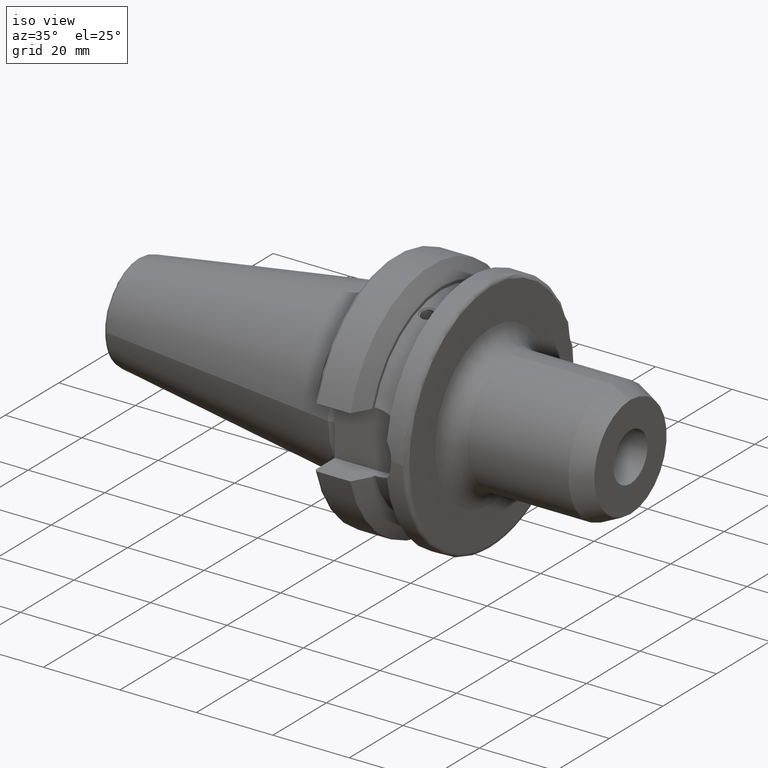
[diagram: clean part render]
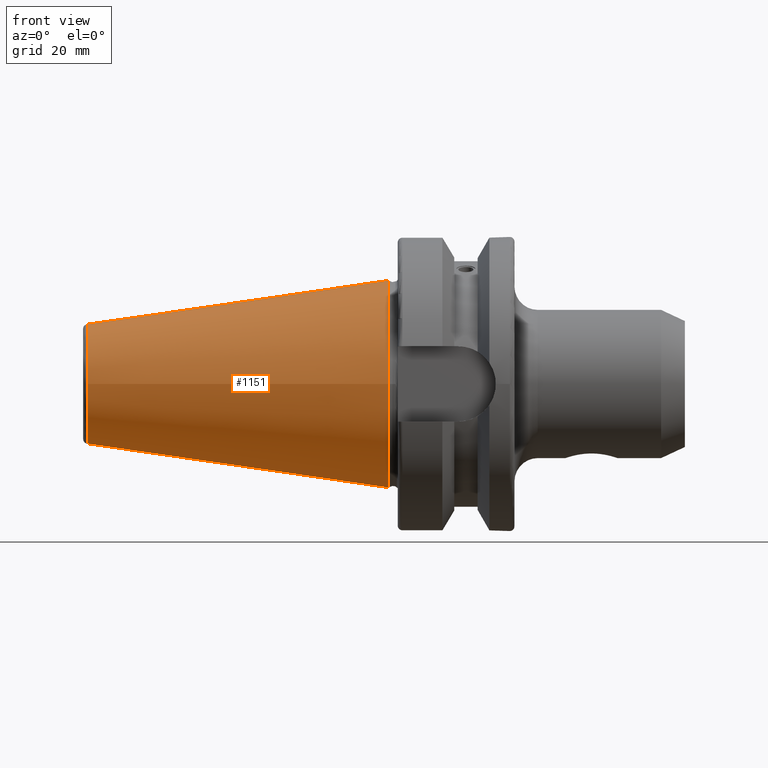
[diagram: tour spotlight — one face highlighted and labeled with its STEP entity id]
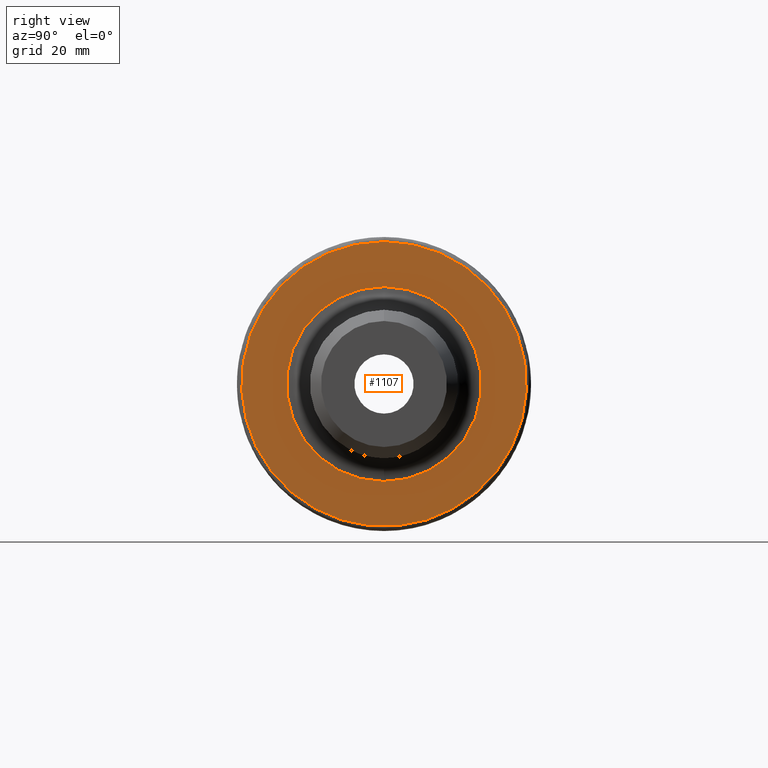
[diagram: tour spotlight — one face highlighted and labeled with its STEP entity id]
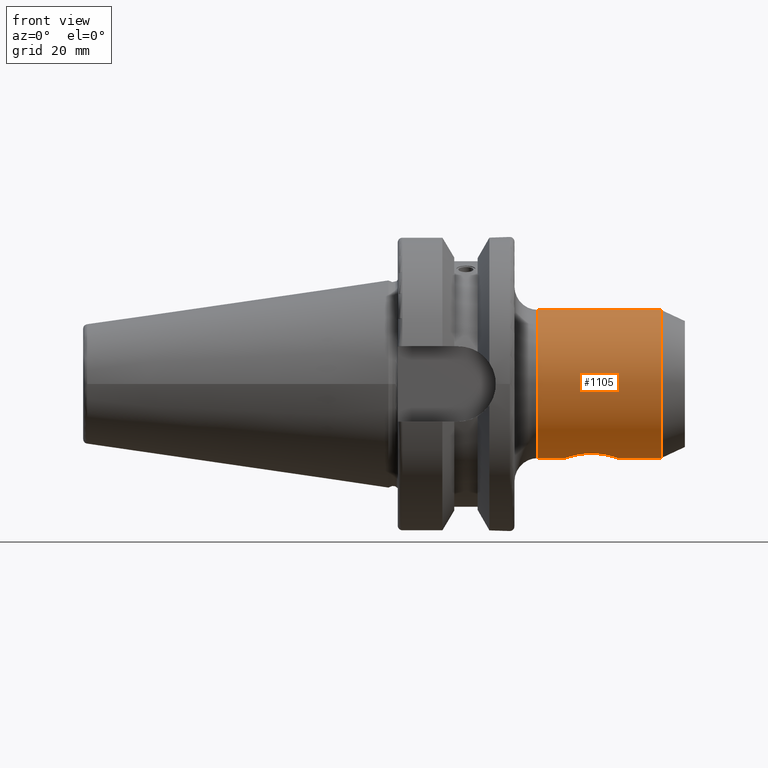
[diagram: tour spotlight — one face highlighted and labeled with its STEP entity id]
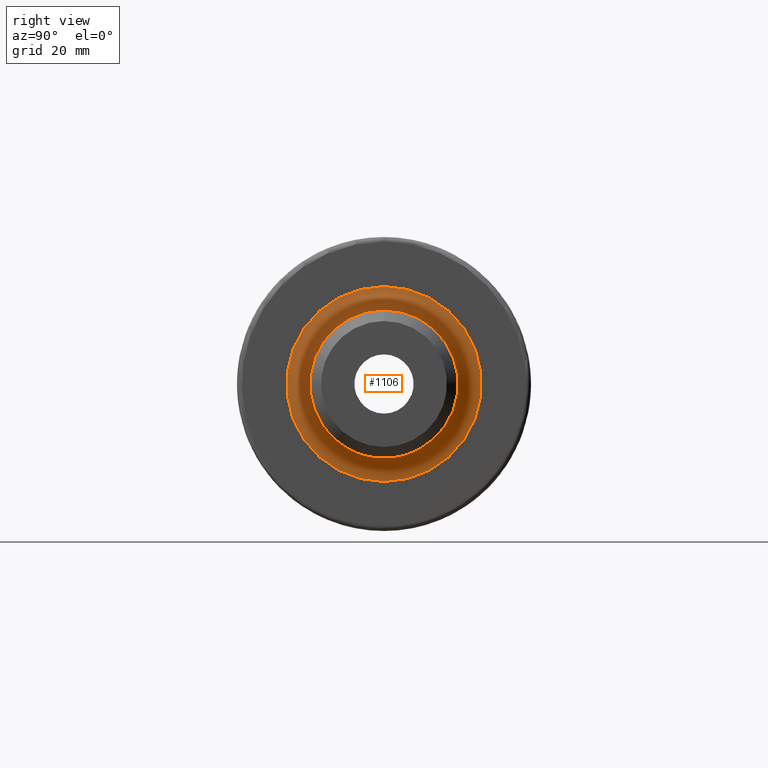
[diagram: tour spotlight — one face highlighted and labeled with its STEP entity id]
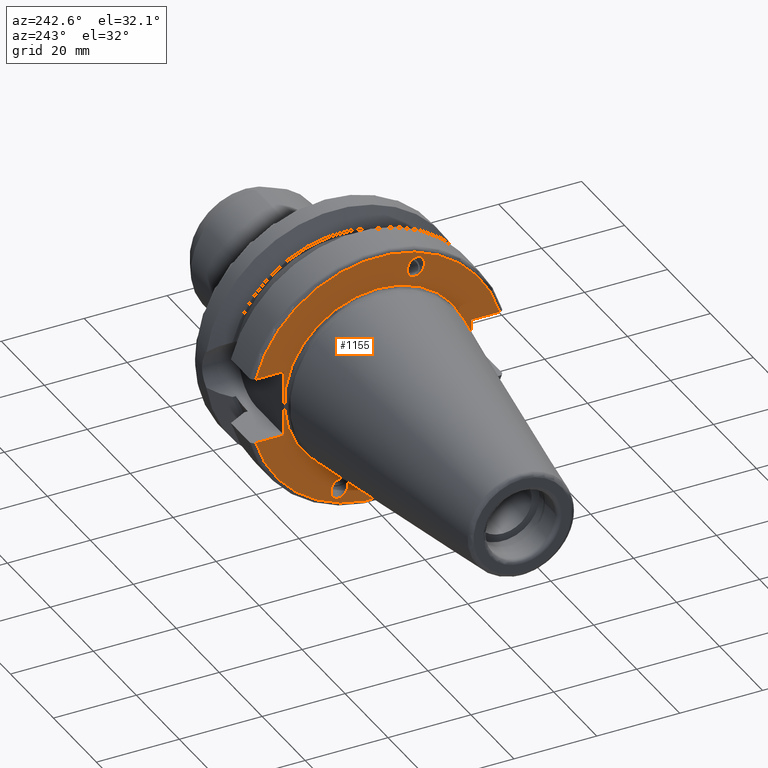
[diagram: tour spotlight — one face highlighted and labeled with its STEP entity id]
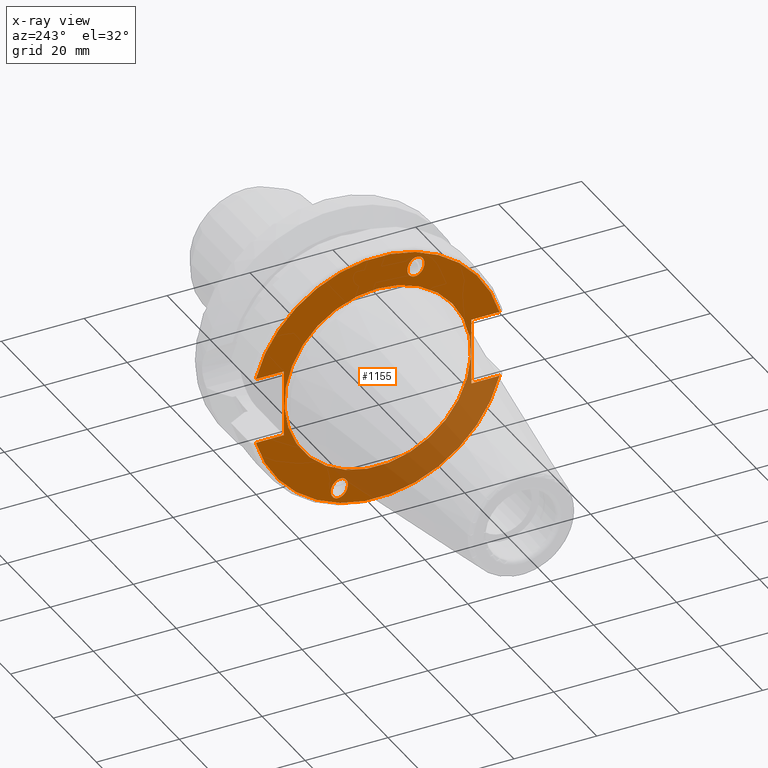
[diagram: x-ray of the same camera — body ghosted, this tour face saturated]
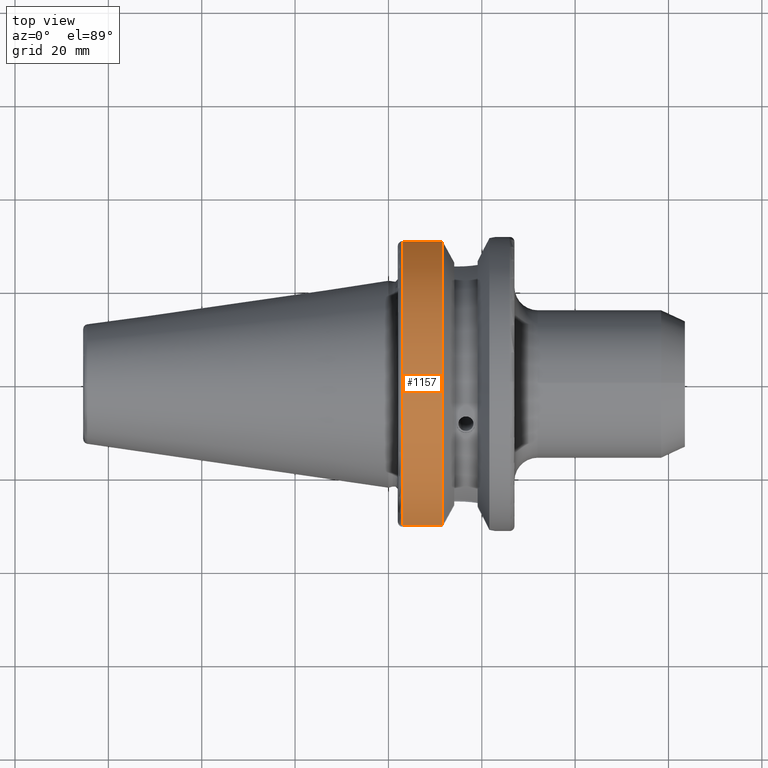
[diagram: tour spotlight — one face highlighted and labeled with its STEP entity id]
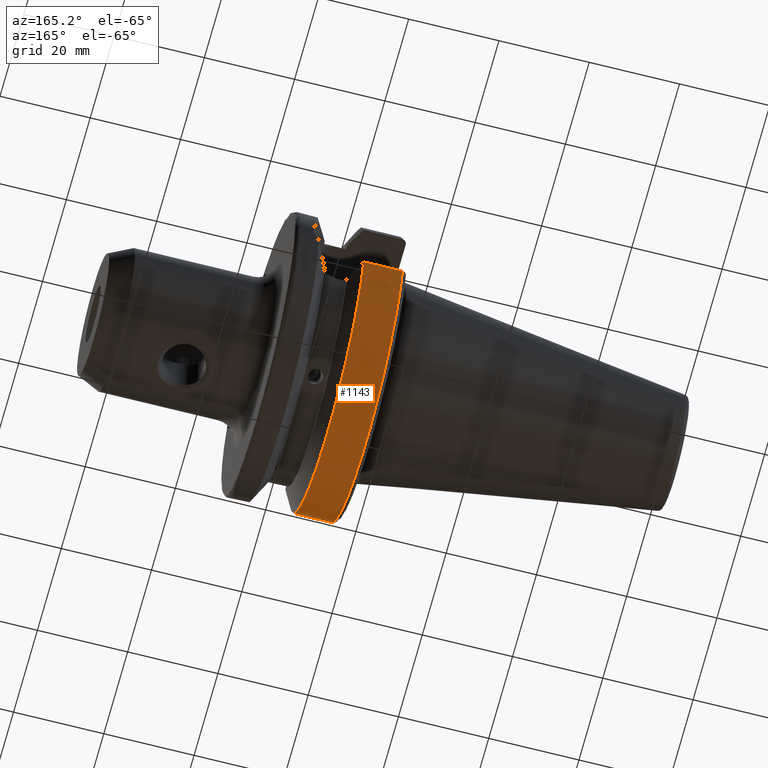
[diagram: tour spotlight — one face highlighted and labeled with its STEP entity id]
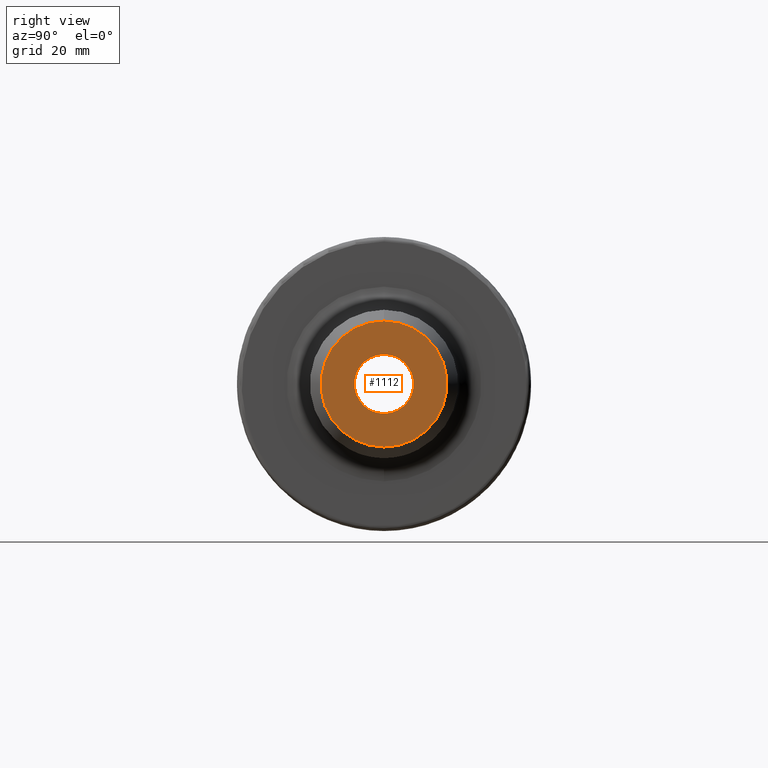
[diagram: tour spotlight — one face highlighted and labeled with its STEP entity id]
A machine part: a face-by-face anatomy tour. The part has 66 B-rep faces; the first image is the clean iso view, then the 8 largest visible faces are spotlighted one at a time (largest first), each with its STEP entity span.

Face 1 — front view, entity #1151. In plain terms, the highlighted conical surface has half-angle 8.297 deg.
Definition (entity closure, byte-faithful):
#45=CONICAL_SURFACE('',#1299,17.5186442890469,0.144812498238939);
#130=CIRCLE('',#1295,12.8122885780937);
#131=CIRCLE('',#1296,12.8122885780937);
#134=CIRCLE('',#1300,22.225);
#229=FACE_OUTER_BOUND('',#306,.T.);
#306=EDGE_LOOP('',(#1017,#1018,#1019,#1020,#1021));
#411=LINE('',#2421,#471);
#471=VECTOR('',#1611,17.5186442890469);
#575=VERTEX_POINT('',#2411);
#576=VERTEX_POINT('',#2412);
#578=VERTEX_POINT('',#2419);
#730=EDGE_CURVE('',#575,#576,#130,.T.);
#731=EDGE_CURVE('',#576,#575,#131,.T.);
#734=EDGE_CURVE('',#578,#578,#134,.T.);
#735=EDGE_CURVE('',#578,#575,#411,.T.);
#1017=ORIENTED_EDGE('',*,*,#734,.F.);
#1018=ORIENTED_EDGE('',*,*,#735,.T.);
#1019=ORIENTED_EDGE('',*,*,#730,.T.);
#1020=ORIENTED_EDGE('',*,*,#731,.T.);
#1021=ORIENTED_EDGE('',*,*,#735,.F.);
#1151=ADVANCED_FACE('',(#229),#45,.T.);
#1295=AXIS2_PLACEMENT_3D('',#2413,#1599,#1600);
#1296=AXIS2_PLACEMENT_3D('',#2414,#1601,#1602);
#1299=AXIS2_PLACEMENT_3D('',#2418,#1607,#1608);
#1300=AXIS2_PLACEMENT_3D('',#2420,#1609,#1610);
#1599=DIRECTION('center_axis',(1.,0.,0.));
#1600=DIRECTION('ref_axis',(0.,0.,-1.));
#1601=DIRECTION('center_axis',(1.,0.,0.));
#1602=DIRECTION('ref_axis',(0.,0.,-1.));
#1607=DIRECTION('center_axis',(1.,0.,0.));
#1608=DIRECTION('ref_axis',(0.,1.,0.));
#1609=DIRECTION('center_axis',(1.,0.,0.));
#1610=DIRECTION('ref_axis',(0.,0.,-1.));
#1611=DIRECTION('',(-0.989532981063282,0.144306893071729,1.76724974695192E-17));
#2411=CARTESIAN_POINT('',(-64.5443068930717,-12.8122885780937,-1.56905281969147E-15));
#2412=CARTESIAN_POINT('',(-64.5443068930717,-1.56905281969147E-15,12.8122885780937));
#2413=CARTESIAN_POINT('Origin',(-64.5443068930717,0.,0.));
#2414=CARTESIAN_POINT('Origin',(-64.5443068930717,0.,0.));
#2418=CARTESIAN_POINT('Origin',(-32.2721534465359,0.,0.));
#2419=CARTESIAN_POINT('',(4.44089209850063E-15,-22.225,-2.72177751110499E-15));
#2420=CARTESIAN_POINT('Origin',(0.,0.,0.));
#2421=CARTESIAN_POINT('',(-32.2721534465359,-17.5186442890469,-2.14541516539823E-15));

Face 2 — right view, entity #1107. In plain terms, the highlighted planar face has unit normal (1, 0, 0).
Definition (entity closure, byte-faithful):
#49=PLANE('',#1200);
#76=FACE_BOUND('',#253,.T.);
#96=CIRCLE('',#1199,20.875);
#97=CIRCLE('',#1201,30.5);
#185=FACE_OUTER_BOUND('',#252,.T.);
#252=EDGE_LOOP('',(#780));
#253=EDGE_LOOP('',(#781));
#484=VERTEX_POINT('',#1906);
#485=VERTEX_POINT('',#1910);
#600=EDGE_CURVE('',#484,#484,#96,.T.);
#601=EDGE_CURVE('',#485,#485,#97,.T.);
#780=ORIENTED_EDGE('',*,*,#601,.T.);
#781=ORIENTED_EDGE('',*,*,#600,.F.);
#1107=ADVANCED_FACE('',(#185,#76),#49,.T.);
#1199=AXIS2_PLACEMENT_3D('',#1908,#1356,#1357);
#1200=AXIS2_PLACEMENT_3D('',#1909,#1358,#1359);
#1201=AXIS2_PLACEMENT_3D('',#1911,#1360,#1361);
#1356=DIRECTION('center_axis',(1.,0.,0.));
#1357=DIRECTION('ref_axis',(0.,-1.22464679914735E-16,1.));
#1358=DIRECTION('center_axis',(1.,0.,0.));
#1359=DIRECTION('ref_axis',(0.,0.,-1.));
#1360=DIRECTION('center_axis',(1.,0.,0.));
#1361=DIRECTION('ref_axis',(0.,0.,-1.));
#1906=CARTESIAN_POINT('',(27.,5.1129003864402E-15,-20.875));
#1908=CARTESIAN_POINT('Origin',(27.,0.,0.));
#1909=CARTESIAN_POINT('Origin',(27.,0.,0.));
#1910=CARTESIAN_POINT('',(27.,-3.73517273739943E-15,30.5));
#1911=CARTESIAN_POINT('Origin',(27.,0.,0.));

Face 3 — front view, entity #1105. In plain terms, the highlighted cylindrical surface (bore or boss wall) has radius 15.875 mm, axis along (1, 0, 0).
Definition (entity closure, byte-faithful):
#75=FACE_BOUND('',#250,.T.);
#92=CIRCLE('',#1194,15.875);
#93=CIRCLE('',#1195,15.875);
#94=CIRCLE('',#1196,15.875);
#155=CYLINDRICAL_SURFACE('',#1193,15.875);
#183=FACE_OUTER_BOUND('',#249,.T.);
#249=EDGE_LOOP('',(#769,#770,#771,#772,#773));
#250=EDGE_LOOP('',(#774));
#331=B_SPLINE_CURVE_WITH_KNOTS('',3,(#1823,#1824,#1825,#1826,#1827,#1828,
#1829,#1830,#1831,#1832,#1833,#1834,#1835,#1836,#1837,#1838,#1839,#1840,
#1841,#1842,#1843,#1844,#1845,#1846,#1847,#1848),.UNSPECIFIED.,.T.,.F.,
(4,1,1,1,1,1,1,1,1,1,1,1,1,1,1,1,1,1,1,1,1,1,1,4),(-5.16635070372784,-4.95547924643282,
-4.85004351778531,-4.74460778913781,-4.6391720604903,-4.53373633184279,
-4.32286487454778,-4.21742914590027,-4.11199341725277,-4.00655768860526,
-3.90112195995775,-3.76054098842774,-3.61996001689774,-3.47937904536773,
-3.40908855960272,-3.33879807383772,-3.19821710230771,-3.0576361307777,
-2.84676467348269,-2.74132894483518,-2.63589321618767,-2.53045748754016,
-2.42502175889266,-2.21415030159764),.UNSPECIFIED.);
#359=LINE('',#1901,#419);
#419=VECTOR('',#1347,15.875);
#477=VERTEX_POINT('',#1794);
#481=VERTEX_POINT('',#1898);
#482=VERTEX_POINT('',#1900);
#483=VERTEX_POINT('',#1902);
#591=EDGE_CURVE('',#477,#477,#331,.T.);
#595=EDGE_CURVE('',#481,#481,#92,.T.);
#596=EDGE_CURVE('',#481,#482,#359,.T.);
#597=EDGE_CURVE('',#483,#482,#93,.T.);
#598=EDGE_CURVE('',#482,#483,#94,.T.);
#769=ORIENTED_EDGE('',*,*,#595,.F.);
#770=ORIENTED_EDGE('',*,*,#596,.T.);
#771=ORIENTED_EDGE('',*,*,#597,.F.);
#772=ORIENTED_EDGE('',*,*,#598,.F.);
#773=ORIENTED_EDGE('',*,*,#596,.F.);
#774=ORIENTED_EDGE('',*,*,#591,.F.);
#1105=ADVANCED_FACE('',(#183,#75),#155,.T.);
#1193=AXIS2_PLACEMENT_3D('',#1897,#1343,#1344);
#1194=AXIS2_PLACEMENT_3D('',#1899,#1345,#1346);
#1195=AXIS2_PLACEMENT_3D('',#1903,#1348,#1349);
#1196=AXIS2_PLACEMENT_3D('',#1904,#1350,#1351);
#1343=DIRECTION('center_axis',(1.,0.,0.));
#1344=DIRECTION('ref_axis',(0.,0.,-1.));
#1345=DIRECTION('center_axis',(1.,0.,0.));
#1346=DIRECTION('ref_axis',(0.,0.,-1.));
#1347=DIRECTION('',(-1.,0.,0.));
#1348=DIRECTION('center_axis',(-1.,0.,0.));
#1349=DIRECTION('ref_axis',(0.,-1.22464679914735E-16,1.));
#1350=DIRECTION('center_axis',(-1.,0.,0.));
#1351=DIRECTION('ref_axis',(0.,-1.22464679914735E-16,1.));
#1794=CARTESIAN_POINT('',(37.9359,8.32667268468867E-16,-15.875));
#1823=CARTESIAN_POINT('Ctrl Pts',(37.9359,8.32667268468867E-16,-15.875));
#1824=CARTESIAN_POINT('Ctrl Pts',(37.9359,0.804060960599264,-15.875));
#1825=CARTESIAN_POINT('Ctrl Pts',(38.21885928879,2.09132047229415,-15.770890115808));
#1826=CARTESIAN_POINT('Ctrl Pts',(39.1357994454657,3.50938295262178,-15.491496025309));
#1827=CARTESIAN_POINT('Ctrl Pts',(39.9733241633632,4.33813073783217,-15.2773201274132));
#1828=CARTESIAN_POINT('Ctrl Pts',(41.0412765394177,5.0191488703765,-15.06465149187));
#1829=CARTESIAN_POINT('Ctrl Pts',(42.6751741856057,5.57296984562855,-14.8661139944416));
#1830=CARTESIAN_POINT('Ctrl Pts',(44.3208456662402,5.57297084650178,-14.8659642266892));
#1831=CARTESIAN_POINT('Ctrl Pts',(45.9586083338581,5.01922685604243,-15.064727910361));
#1832=CARTESIAN_POINT('Ctrl Pts',(47.0260274881502,4.33931125358054,-15.2770442972329));
#1833=CARTESIAN_POINT('Ctrl Pts',(47.8648384719495,3.50842653957464,-15.4919354515253));
#1834=CARTESIAN_POINT('Ctrl Pts',(48.6291868675363,2.3294525940605,-15.7242799743365));
#1835=CARTESIAN_POINT('Ctrl Pts',(49.0834509457543,0.810219586411434,-15.8821685086812));
#1836=CARTESIAN_POINT('Ctrl Pts',(49.0855214263102,-0.809488388950272,-15.8825436281913));
#1837=CARTESIAN_POINT('Ctrl Pts',(48.6702661121608,-2.19030602512504,-15.738811058703));
#1838=CARTESIAN_POINT('Ctrl Pts',(48.0991256988382,-3.15823069072185,-15.5624442240192));
#1839=CARTESIAN_POINT('Ctrl Pts',(47.4209872970529,-3.99391174533736,-15.3741944964824));
#1840=CARTESIAN_POINT('Ctrl Pts',(46.3687385665599,-4.84177544004266,-15.127111655742));
#1841=CARTESIAN_POINT('Ctrl Pts',(44.4599953989191,-5.58172331901252,-14.8637794209435));
#1842=CARTESIAN_POINT('Ctrl Pts',(42.6750971656157,-5.5704892121659,-14.866732995847));
#1843=CARTESIAN_POINT('Ctrl Pts',(41.0415419489669,-5.01962431176317,-15.0645357117197));
#1844=CARTESIAN_POINT('Ctrl Pts',(39.9733674477062,-4.33747944375034,-15.2774833046071));
#1845=CARTESIAN_POINT('Ctrl Pts',(39.135885241253,-3.50936750779,-15.4915008495138));
#1846=CARTESIAN_POINT('Ctrl Pts',(38.2188896244505,-2.09105896837217,-15.7709557795993));
#1847=CARTESIAN_POINT('Ctrl Pts',(37.9359,-0.804060960599224,-15.875));
#1848=CARTESIAN_POINT('Ctrl Pts',(37.9359,6.93889390390723E-16,-15.875));
#1897=CARTESIAN_POINT('Origin',(42.7033980318949,0.,0.));
#1898=CARTESIAN_POINT('',(58.4067960637898,-1.94412679364642E-15,15.875));
#1899=CARTESIAN_POINT('Origin',(58.4067960637898,0.,0.));
#1900=CARTESIAN_POINT('',(32.,-1.94412679364642E-15,15.875));
#1901=CARTESIAN_POINT('',(42.7033980318949,-1.94412679364642E-15,15.875));
#1902=CARTESIAN_POINT('',(32.,0.,-15.875));
#1903=CARTESIAN_POINT('Origin',(32.,0.,0.));
#1904=CARTESIAN_POINT('Origin',(32.,0.,0.));

Face 4 — right view, entity #1106. In plain terms, the highlighted toroidal blend (fillet) surface has major radius 20.875 mm and minor (blend) radius 5 mm.
Definition (entity closure, byte-faithful):
#68=TOROIDAL_SURFACE('',#1197,20.875,5.);
#93=CIRCLE('',#1195,15.875);
#94=CIRCLE('',#1196,15.875);
#95=CIRCLE('',#1198,5.);
#96=CIRCLE('',#1199,20.875);
#184=FACE_OUTER_BOUND('',#251,.T.);
#251=EDGE_LOOP('',(#775,#776,#777,#778,#779));
#482=VERTEX_POINT('',#1900);
#483=VERTEX_POINT('',#1902);
#484=VERTEX_POINT('',#1906);
#597=EDGE_CURVE('',#483,#482,#93,.T.);
#598=EDGE_CURVE('',#482,#483,#94,.T.);
#599=EDGE_CURVE('',#483,#484,#95,.T.);
#600=EDGE_CURVE('',#484,#484,#96,.T.);
#775=ORIENTED_EDGE('',*,*,#597,.T.);
#776=ORIENTED_EDGE('',*,*,#598,.T.);
#777=ORIENTED_EDGE('',*,*,#599,.T.);
#778=ORIENTED_EDGE('',*,*,#600,.T.);
#779=ORIENTED_EDGE('',*,*,#599,.F.);
#1106=ADVANCED_FACE('',(#184),#68,.F.);
#1195=AXIS2_PLACEMENT_3D('',#1903,#1348,#1349);
#1196=AXIS2_PLACEMENT_3D('',#1904,#1350,#1351);
#1197=AXIS2_PLACEMENT_3D('',#1905,#1352,#1353);
#1198=AXIS2_PLACEMENT_3D('',#1907,#1354,#1355);
#1199=AXIS2_PLACEMENT_3D('',#1908,#1356,#1357);
#1348=DIRECTION('center_axis',(-1.,0.,0.));
#1349=DIRECTION('ref_axis',(0.,-1.22464679914735E-16,1.));
#1350=DIRECTION('center_axis',(-1.,0.,0.));
#1351=DIRECTION('ref_axis',(0.,-1.22464679914735E-16,1.));
#1352=DIRECTION('center_axis',(-1.,0.,0.));
#1353=DIRECTION('ref_axis',(0.,0.,1.));
#1354=DIRECTION('center_axis',(0.,-1.,1.22464679914735E-16));
#1355=DIRECTION('ref_axis',(0.,-1.22464679914735E-16,-1.));
#1356=DIRECTION('center_axis',(1.,0.,0.));
#1357=DIRECTION('ref_axis',(0.,-1.22464679914735E-16,1.));
#1900=CARTESIAN_POINT('',(32.,-1.94412679364642E-15,15.875));
#1902=CARTESIAN_POINT('',(32.,0.,-15.875));
#1903=CARTESIAN_POINT('Origin',(32.,0.,0.));
#1904=CARTESIAN_POINT('Origin',(32.,0.,0.));
#1905=CARTESIAN_POINT('Origin',(32.,0.,0.));
#1906=CARTESIAN_POINT('',(27.,5.1129003864402E-15,-20.875));
#1907=CARTESIAN_POINT('Origin',(32.,-2.5564501932201E-15,-20.875));
#1908=CARTESIAN_POINT('Origin',(27.,0.,0.));

Face 5 — auxiliary view, entity #1155. An x-ray twin of the same camera follows (body ghosted, this face saturated) — the face is partly hidden behind the body. In plain terms, the highlighted planar face has unit normal (-1, 0, 0).
Definition (entity closure, byte-faithful):
#27=ELLIPSE('',#1235,2.44154917752291,2.);
#36=ELLIPSE('',#1258,2.44154917752291,2.);
#63=PLANE('',#1309);
#86=FACE_BOUND('',#311,.T.);
#87=FACE_BOUND('',#312,.T.);
#88=FACE_BOUND('',#313,.T.);
#127=CIRCLE('',#1286,30.5);
#139=CIRCLE('',#1308,22.5);
#140=CIRCLE('',#1310,30.5);
#233=FACE_OUTER_BOUND('',#310,.T.);
#310=EDGE_LOOP('',(#1036,#1037,#1038,#1039,#1040,#1041,#1042,#1043));
#311=EDGE_LOOP('',(#1044));
#312=EDGE_LOOP('',(#1045));
#313=EDGE_LOOP('',(#1046));
#387=LINE('',#2255,#447);
#391=LINE('',#2263,#451);
#394=LINE('',#2283,#454);
#405=LINE('',#2383,#465);
#408=LINE('',#2404,#468);
#410=LINE('',#2407,#470);
#447=VECTOR('',#1517,10.);
#451=VECTOR('',#1523,10.);
#454=VECTOR('',#1528,10.);
#465=VECTOR('',#1583,10.);
#468=VECTOR('',#1588,10.);
#470=VECTOR('',#1592,10.);
#510=VERTEX_POINT('',#2087);
#525=VERTEX_POINT('',#2168);
#543=VERTEX_POINT('',#2243);
#544=VERTEX_POINT('',#2254);
#546=VERTEX_POINT('',#2260);
#547=VERTEX_POINT('',#2262);
#562=VERTEX_POINT('',#2343);
#569=VERTEX_POINT('',#2380);
#570=VERTEX_POINT('',#2382);
#574=VERTEX_POINT('',#2403);
#582=VERTEX_POINT('',#2433);
#638=EDGE_CURVE('',#510,#510,#27,.T.);
#661=EDGE_CURVE('',#525,#525,#36,.T.);
#682=EDGE_CURVE('',#544,#543,#387,.T.);
#686=EDGE_CURVE('',#547,#546,#391,.T.);
#691=EDGE_CURVE('',#546,#544,#394,.T.);
#711=EDGE_CURVE('',#547,#562,#127,.T.);
#721=EDGE_CURVE('',#570,#569,#405,.T.);
#726=EDGE_CURVE('',#574,#562,#408,.T.);
#728=EDGE_CURVE('',#569,#574,#410,.T.);
#742=EDGE_CURVE('',#582,#582,#139,.T.);
#743=EDGE_CURVE('',#570,#543,#140,.T.);
#1036=ORIENTED_EDGE('',*,*,#682,.T.);
#1037=ORIENTED_EDGE('',*,*,#743,.F.);
#1038=ORIENTED_EDGE('',*,*,#721,.T.);
#1039=ORIENTED_EDGE('',*,*,#728,.T.);
#1040=ORIENTED_EDGE('',*,*,#726,.T.);
#1041=ORIENTED_EDGE('',*,*,#711,.F.);
#1042=ORIENTED_EDGE('',*,*,#686,.T.);
#1043=ORIENTED_EDGE('',*,*,#691,.T.);
#1044=ORIENTED_EDGE('',*,*,#638,.T.);
#1045=ORIENTED_EDGE('',*,*,#661,.T.);
#1046=ORIENTED_EDGE('',*,*,#742,.T.);
#1155=ADVANCED_FACE('',(#233,#86,#87,#88),#63,.T.);
#1235=AXIS2_PLACEMENT_3D('',#2089,#1439,#1440);
#1258=AXIS2_PLACEMENT_3D('',#2170,#1492,#1493);
#1286=AXIS2_PLACEMENT_3D('',#2344,#1570,#1571);
#1308=AXIS2_PLACEMENT_3D('',#2435,#1628,#1629);
#1309=AXIS2_PLACEMENT_3D('',#2436,#1630,#1631);
#1310=AXIS2_PLACEMENT_3D('',#2437,#1632,#1633);
#1439=DIRECTION('center_axis',(1.,0.,0.));
#1440=DIRECTION('ref_axis',(5.68400912649004E-17,-0.342020143325671,0.939692620785908));
#1492=DIRECTION('center_axis',(1.,0.,0.));
#1493=DIRECTION('ref_axis',(5.68400912649004E-17,0.342020143325671,-0.939692620785908));
#1517=DIRECTION('',(0.,-1.,0.));
#1523=DIRECTION('',(0.,1.,0.));
#1528=DIRECTION('',(0.,0.,1.));
#1570=DIRECTION('center_axis',(1.,0.,0.));
#1571=DIRECTION('ref_axis',(0.,0.,-1.));
#1583=DIRECTION('',(0.,-1.,0.));
#1588=DIRECTION('',(0.,1.,0.));
#1592=DIRECTION('',(0.,0.,-1.));
#1628=DIRECTION('center_axis',(1.,0.,0.));
#1629=DIRECTION('ref_axis',(0.,0.,-1.));
#1630=DIRECTION('center_axis',(-1.,0.,0.));
#1631=DIRECTION('ref_axis',(0.,0.,1.));
#1632=DIRECTION('center_axis',(1.,0.,0.));
#1633=DIRECTION('ref_axis',(0.,0.,-1.));
#2087=CARTESIAN_POINT('',(1.99999999999999,-8.39948487015999,23.0773950158154));
#2089=CARTESIAN_POINT('Origin',(1.99999999999999,-9.23454386979305,25.3717007612195));
#2168=CARTESIAN_POINT('',(1.99999999999999,8.39948487015999,-23.0773950158154));
#2170=CARTESIAN_POINT('Origin',(1.99999999999999,9.23454386979305,-25.3717007612195));
#2243=CARTESIAN_POINT('',(1.99999999999999,-29.4184890842477,8.05));
#2254=CARTESIAN_POINT('',(1.99999999999999,-22.6,8.05));
#2255=CARTESIAN_POINT('',(1.99999999999999,3.95,8.05));
#2260=CARTESIAN_POINT('',(1.99999999999999,-22.6,-8.05));
#2262=CARTESIAN_POINT('',(1.99999999999999,-29.4184890842477,-8.05));
#2263=CARTESIAN_POINT('',(1.99999999999999,3.95,-8.05));
#2283=CARTESIAN_POINT('',(1.99999999999999,-22.6,0.));
#2343=CARTESIAN_POINT('',(1.99999999999999,29.4184890842477,-8.05));
#2344=CARTESIAN_POINT('Origin',(1.99999999999999,0.,0.));
#2380=CARTESIAN_POINT('',(1.99999999999999,22.6,8.05));
#2382=CARTESIAN_POINT('',(1.99999999999999,29.4184890842477,8.05));
#2383=CARTESIAN_POINT('',(1.99999999999999,26.55,8.05));
#2403=CARTESIAN_POINT('',(1.99999999999999,22.6,-8.05));
#2404=CARTESIAN_POINT('',(1.99999999999999,26.55,-8.05));
#2407=CARTESIAN_POINT('',(1.99999999999999,22.6,0.));
#2433=CARTESIAN_POINT('',(2.,-2.75545529808154E-15,22.5));
#2435=CARTESIAN_POINT('Origin',(2.,0.,0.));
#2436=CARTESIAN_POINT('Origin',(1.99999999999999,30.5,0.));
#2437=CARTESIAN_POINT('Origin',(1.99999999999999,0.,0.));

Face 6 — top view, entity #1157. In plain terms, the highlighted cylindrical surface (partial cylindrical patch) has radius 31.5 mm, axis along (1, 0, 0).
Definition (entity closure, byte-faithful):
#141=CIRCLE('',#1312,31.5);
#142=CIRCLE('',#1314,31.5000000000001);
#177=CYLINDRICAL_SURFACE('',#1313,31.5);
#235=FACE_OUTER_BOUND('',#315,.T.);
#315=EDGE_LOOP('',(#1051,#1052,#1053,#1054));
#386=LINE('',#2242,#446);
#406=LINE('',#2396,#466);
#446=VECTOR('',#1516,10.);
#466=VECTOR('',#1584,10.);
#541=VERTEX_POINT('',#2237);
#542=VERTEX_POINT('',#2241);
#571=VERTEX_POINT('',#2384);
#572=VERTEX_POINT('',#2395);
#680=EDGE_CURVE('',#542,#541,#386,.T.);
#723=EDGE_CURVE('',#572,#571,#406,.T.);
#744=EDGE_CURVE('',#571,#542,#141,.T.);
#745=EDGE_CURVE('',#572,#541,#142,.T.);
#1051=ORIENTED_EDGE('',*,*,#680,.T.);
#1052=ORIENTED_EDGE('',*,*,#745,.F.);
#1053=ORIENTED_EDGE('',*,*,#723,.T.);
#1054=ORIENTED_EDGE('',*,*,#744,.T.);
#1157=ADVANCED_FACE('',(#235),#177,.T.);
#1312=AXIS2_PLACEMENT_3D('',#2439,#1636,#1637);
#1313=AXIS2_PLACEMENT_3D('',#2440,#1638,#1639);
#1314=AXIS2_PLACEMENT_3D('',#2441,#1640,#1641);
#1516=DIRECTION('',(1.,0.,0.));
#1584=DIRECTION('',(-1.,0.,0.));
#1636=DIRECTION('center_axis',(1.,0.,0.));
#1637=DIRECTION('ref_axis',(0.,0.,-1.));
#1638=DIRECTION('center_axis',(1.,0.,0.));
#1639=DIRECTION('ref_axis',(0.,1.,0.));
#1640=DIRECTION('center_axis',(1.,0.,0.));
#1641=DIRECTION('ref_axis',(0.,0.,-1.));
#2237=CARTESIAN_POINT('',(11.5690363073382,-30.4540227227866,8.05));
#2241=CARTESIAN_POINT('',(2.99999999999999,-30.4540227227866,8.05));
#2242=CARTESIAN_POINT('',(7.28451815366907,-30.4540227227866,8.05));
#2384=CARTESIAN_POINT('',(2.99999999999999,30.4540227227866,8.05));
#2395=CARTESIAN_POINT('',(11.5690363073382,30.4540227227866,8.05));
#2396=CARTESIAN_POINT('',(7.28451815366907,30.4540227227866,8.05));
#2439=CARTESIAN_POINT('Origin',(2.99999999999999,0.,0.));
#2440=CARTESIAN_POINT('Origin',(7.28451815366907,0.,0.));
#2441=CARTESIAN_POINT('Origin',(11.5690363073382,0.,0.));

Face 7 — auxiliary view, entity #1143. In plain terms, the highlighted cylindrical surface (partial cylindrical patch) has radius 31.5 mm, axis along (1, 0, 0).
Definition (entity closure, byte-faithful):
#125=CIRCLE('',#1282,31.5000000000001);
#126=CIRCLE('',#1284,31.5);
#174=CYLINDRICAL_SURFACE('',#1283,31.5);
#221=FACE_OUTER_BOUND('',#298,.T.);
#298=EDGE_LOOP('',(#970,#971,#972,#973));
#392=LINE('',#2276,#452);
#399=LINE('',#2341,#459);
#452=VECTOR('',#1524,10.);
#459=VECTOR('',#1567,10.);
#548=VERTEX_POINT('',#2264);
#549=VERTEX_POINT('',#2275);
#560=VERTEX_POINT('',#2333);
#561=VERTEX_POINT('',#2339);
#688=EDGE_CURVE('',#549,#548,#392,.T.);
#707=EDGE_CURVE('',#549,#560,#125,.T.);
#709=EDGE_CURVE('',#548,#561,#126,.T.);
#710=EDGE_CURVE('',#561,#560,#399,.T.);
#970=ORIENTED_EDGE('',*,*,#688,.T.);
#971=ORIENTED_EDGE('',*,*,#709,.T.);
#972=ORIENTED_EDGE('',*,*,#710,.T.);
#973=ORIENTED_EDGE('',*,*,#707,.F.);
#1143=ADVANCED_FACE('',(#221),#174,.T.);
#1282=AXIS2_PLACEMENT_3D('',#2334,#1561,#1562);
#1283=AXIS2_PLACEMENT_3D('',#2338,#1563,#1564);
#1284=AXIS2_PLACEMENT_3D('',#2340,#1565,#1566);
#1524=DIRECTION('',(-1.,0.,0.));
#1561=DIRECTION('center_axis',(1.,0.,0.));
#1562=DIRECTION('ref_axis',(0.,0.,-1.));
#1563=DIRECTION('center_axis',(1.,0.,0.));
#1564=DIRECTION('ref_axis',(0.,1.,0.));
#1565=DIRECTION('center_axis',(1.,0.,0.));
#1566=DIRECTION('ref_axis',(0.,0.,-1.));
#1567=DIRECTION('',(1.,0.,0.));
#2264=CARTESIAN_POINT('',(2.99999999999999,-30.4540227227866,-8.05));
#2275=CARTESIAN_POINT('',(11.5690363073382,-30.4540227227866,-8.05));
#2276=CARTESIAN_POINT('',(7.28451815366907,-30.4540227227866,-8.05));
#2333=CARTESIAN_POINT('',(11.5690363073382,30.4540227227866,-8.05));
#2334=CARTESIAN_POINT('Origin',(11.5690363073382,0.,0.));
#2338=CARTESIAN_POINT('Origin',(7.28451815366907,0.,0.));
#2339=CARTESIAN_POINT('',(2.99999999999999,30.4540227227866,-8.05));
#2340=CARTESIAN_POINT('Origin',(2.99999999999999,0.,0.));
#2341=CARTESIAN_POINT('',(7.28451815366907,30.4540227227866,-8.05));

Face 8 — right view, entity #1112. In plain terms, the highlighted planar face has unit normal (1, 0, 0).
Definition (entity closure, byte-faithful):
#50=PLANE('',#1212);
#80=FACE_BOUND('',#262,.T.);
#98=CIRCLE('',#1203,6.35);
#103=CIRCLE('',#1211,13.5);
#190=FACE_OUTER_BOUND('',#261,.T.);
#261=EDGE_LOOP('',(#806));
#262=EDGE_LOOP('',(#807));
#486=VERTEX_POINT('',#1913);
#495=VERTEX_POINT('',#2005);
#602=EDGE_CURVE('',#486,#486,#98,.T.);
#614=EDGE_CURVE('',#495,#495,#103,.T.);
#806=ORIENTED_EDGE('',*,*,#614,.T.);
#807=ORIENTED_EDGE('',*,*,#602,.T.);
#1112=ADVANCED_FACE('',(#190,#80),#50,.T.);
#1203=AXIS2_PLACEMENT_3D('',#1914,#1364,#1365);
#1211=AXIS2_PLACEMENT_3D('',#2006,#1383,#1384);
#1212=AXIS2_PLACEMENT_3D('',#2008,#1386,#1387);
#1364=DIRECTION('center_axis',(-1.,0.,0.));
#1365=DIRECTION('ref_axis',(0.,0.,-1.));
#1383=DIRECTION('center_axis',(1.,0.,0.));
#1384=DIRECTION('ref_axis',(0.,0.,-1.));
#1386=DIRECTION('center_axis',(1.,0.,0.));
#1387=DIRECTION('ref_axis',(0.,0.,-1.));
#1913=CARTESIAN_POINT('',(63.5,-7.77650717458569E-16,6.35));
#1914=CARTESIAN_POINT('Origin',(63.5,0.,0.));
#2005=CARTESIAN_POINT('',(63.5,-1.65327317884893E-15,13.5));
#2006=CARTESIAN_POINT('Origin',(63.5,0.,0.));
#2008=CARTESIAN_POINT('Origin',(63.5,0.,-9.15107025851698E-17));